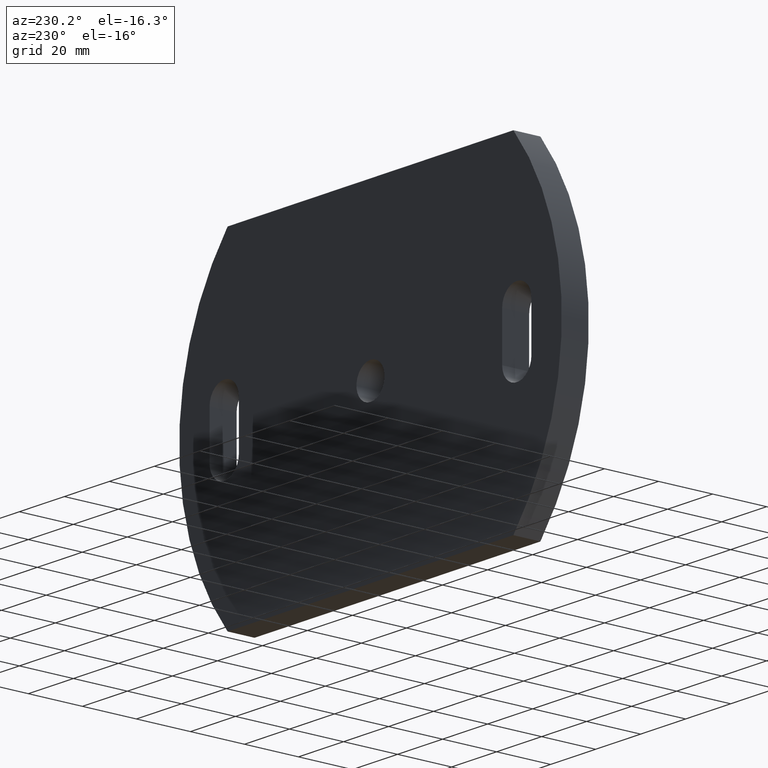
[diagram: clean part render]
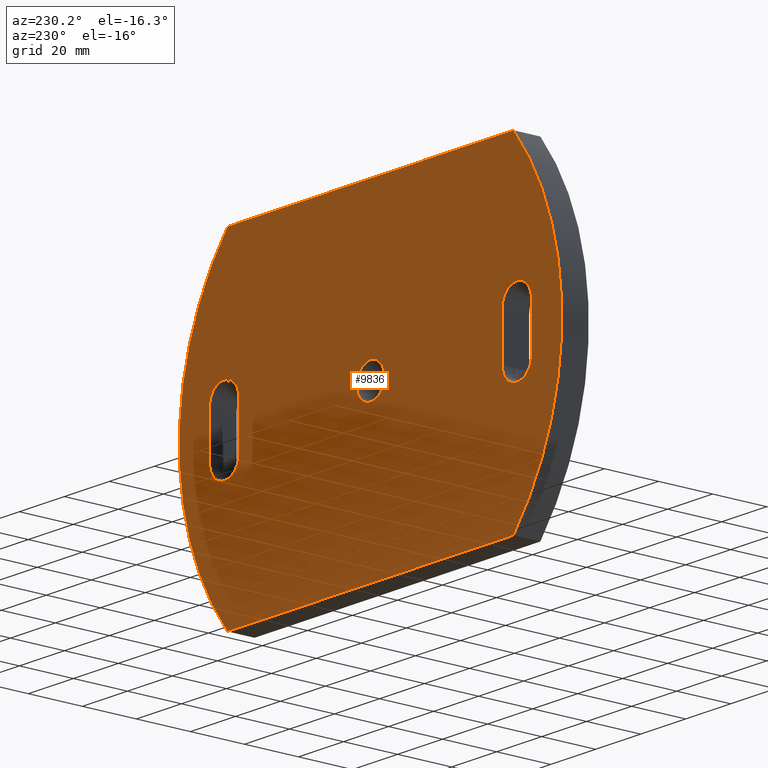
[diagram: same view with one face highlighted and labeled with its STEP entity id]
A machine part, auxiliary view. The second image highlights one B-rep face of the part: STEP entity #9836.
In plain terms, the highlighted planar face has unit normal (0, -1, 0).
Its self-contained STEP definition (entity closure, byte-faithful):
#23 = ORIENTED_EDGE ( 'NONE', *, *, #3301, .F. ) ;
#209 = CARTESIAN_POINT ( 'NONE',  ( -65.00000000000000000, 10.00000000000000000, -8.500000000000010700 ) ) ;
#443 = AXIS2_PLACEMENT_3D ( 'NONE', #10272, #9493, #6099 ) ;
#488 = VERTEX_POINT ( 'NONE', #5750 ) ;
#520 = DIRECTION ( 'NONE',  ( 0.0000000000000000000, 1.000000000000000000, 0.0000000000000000000 ) ) ;
#551 = VECTOR ( 'NONE', #7333, 1000.000000000000000 ) ;
#569 = VERTEX_POINT ( 'NONE', #4309 ) ;
#602 = VERTEX_POINT ( 'NONE', #8509 ) ;
#675 = CARTESIAN_POINT ( 'NONE',  ( -71.50000000000000000, 10.00000000000000000, 8.499999999999982200 ) ) ;
#719 = ORIENTED_EDGE ( 'NONE', *, *, #7310, .F. ) ;
#732 = AXIS2_PLACEMENT_3D ( 'NONE', #2830, #6996, #3647 ) ;
#890 = FACE_BOUND ( 'NONE', #6269, .T. ) ;
#921 = CIRCLE ( 'NONE', #732, 6.500000000000005300 ) ;
#929 = EDGE_LOOP ( 'NONE', ( #9715, #8603 ) ) ;
#991 = PLANE ( 'NONE',  #4669 ) ;
#1014 = DIRECTION ( 'NONE',  ( 0.0000000000000000000, 0.0000000000000000000, 1.000000000000000000 ) ) ;
#1066 = EDGE_CURVE ( 'NONE', #2252, #2362, #4580, .T. ) ;
#1146 = LINE ( 'NONE', #7281, #8563 ) ;
#1161 = CIRCLE ( 'NONE', #8375, 6.500000000000005300 ) ;
#1301 = CARTESIAN_POINT ( 'NONE',  ( 0.0000000000000000000, 10.00000000000000000, 0.0000000000000000000 ) ) ;
#1333 = CARTESIAN_POINT ( 'NONE',  ( 58.49999999999998600, 10.00000000000000000, -8.500000000000008900 ) ) ;
#1354 = CARTESIAN_POINT ( 'NONE',  ( 0.0000000000000000000, 10.00000000000000000, 0.0000000000000000000 ) ) ;
#1399 = VERTEX_POINT ( 'NONE', #1914 ) ;
#1411 = VERTEX_POINT ( 'NONE', #3824 ) ;
#1569 = CARTESIAN_POINT ( 'NONE',  ( -71.50000000000000000, 10.00000000000000000, -8.499999999999985800 ) ) ;
#1619 = EDGE_CURVE ( 'NONE', #2362, #9214, #4570, .T. ) ;
#1764 = VERTEX_POINT ( 'NONE', #7202 ) ;
#1838 = VERTEX_POINT ( 'NONE', #3741 ) ;
#1843 = CARTESIAN_POINT ( 'NONE',  ( -9.470930232558071500, 10.00000000000000000, 0.0000000000000000000 ) ) ;
#1914 = CARTESIAN_POINT ( 'NONE',  ( -65.00000000000000000, 10.00000000000000000, 14.99999999999998000 ) ) ;
#1929 = EDGE_CURVE ( 'NONE', #6948, #4202, #1161, .T. ) ;
#1996 = VERTEX_POINT ( 'NONE', #9534 ) ;
#1999 = DIRECTION ( 'NONE',  ( 0.0000000000000000000, 0.0000000000000000000, 1.000000000000000000 ) ) ;
#2232 = EDGE_CURVE ( 'NONE', #1399, #1838, #6102, .T. ) ;
#2252 = VERTEX_POINT ( 'NONE', #9168 ) ;
#2345 = AXIS2_PLACEMENT_3D ( 'NONE', #6882, #5190, #6133 ) ;
#2362 = VERTEX_POINT ( 'NONE', #8503 ) ;
#2408 = AXIS2_PLACEMENT_3D ( 'NONE', #1301, #4592, #7801 ) ;
#2488 = DIRECTION ( 'NONE',  ( -1.000000000000000000, -0.0000000000000000000, -3.278217592397115900E-016 ) ) ;
#2547 = DIRECTION ( 'NONE',  ( 0.0000000000000000000, 0.0000000000000000000, 1.000000000000000000 ) ) ;
#2554 = AXIS2_PLACEMENT_3D ( 'NONE', #8424, #4376, #3577 ) ;
#2629 = ORIENTED_EDGE ( 'NONE', *, *, #3654, .F. ) ;
#2670 = DIRECTION ( 'NONE',  ( 0.0000000000000000000, -1.000000000000000000, 0.0000000000000000000 ) ) ;
#2685 = LINE ( 'NONE', #1333, #4663 ) ;
#2830 = CARTESIAN_POINT ( 'NONE',  ( 65.00000000000000000, 10.00000000000000000, 8.500000000000010700 ) ) ;
#3005 = CIRCLE ( 'NONE', #2554, 94.47093023255811800 ) ;
#3180 = EDGE_LOOP ( 'NONE', ( #2629, #8024, #23, #719, #6128 ) ) ;
#3279 = VECTOR ( 'NONE', #9814, 1000.000000000000000 ) ;
#3301 = EDGE_CURVE ( 'NONE', #602, #6948, #6851, .T. ) ;
#3577 = DIRECTION ( 'NONE',  ( 0.0000000000000000000, 0.0000000000000000000, 1.000000000000000000 ) ) ;
#3647 = DIRECTION ( 'NONE',  ( 0.0000000000000000000, 0.0000000000000000000, 1.000000000000000000 ) ) ;
#3654 = EDGE_CURVE ( 'NONE', #4202, #1996, #2685, .T. ) ;
#3741 = CARTESIAN_POINT ( 'NONE',  ( -58.50000000000000700, 10.00000000000000000, 8.499999999999984000 ) ) ;
#3793 = CARTESIAN_POINT ( 'NONE',  ( 65.00000000000000000, 10.00000000000000000, 8.500000000000010700 ) ) ;
#3824 = CARTESIAN_POINT ( 'NONE',  ( -63.49999999999995700, 10.00000000000000000, -60.00000000000004300 ) ) ;
#4099 = CARTESIAN_POINT ( 'NONE',  ( -65.00000000000000000, 10.00000000000000000, 8.499999999999989300 ) ) ;
#4139 = CARTESIAN_POINT ( 'NONE',  ( -63.50000000000001400, 10.00000000000000000, 59.99999999999997900 ) ) ;
#4181 = ORIENTED_EDGE ( 'NONE', *, *, #5363, .F. ) ;
#4202 = VERTEX_POINT ( 'NONE', #6445 ) ;
#4309 = CARTESIAN_POINT ( 'NONE',  ( 0.0000000000000000000, 10.00000000000000000, 6.250000000000000000 ) ) ;
#4376 = DIRECTION ( 'NONE',  ( 0.0000000000000000000, 1.000000000000000000, 0.0000000000000000000 ) ) ;
#4570 = CIRCLE ( 'NONE', #443, 94.47093023255808900 ) ;
#4580 = LINE ( 'NONE', #4139, #3279 ) ;
#4592 = DIRECTION ( 'NONE',  ( 0.0000000000000000000, 1.000000000000000000, 0.0000000000000000000 ) ) ;
#4663 = VECTOR ( 'NONE', #8008, 1000.000000000000000 ) ;
#4669 = AXIS2_PLACEMENT_3D ( 'NONE', #1843, #2670, #8493 ) ;
#4926 = AXIS2_PLACEMENT_3D ( 'NONE', #3793, #6957, #1999 ) ;
#4976 = CARTESIAN_POINT ( 'NONE',  ( -58.50000000000000700, 10.00000000000000000, -8.499999999999984000 ) ) ;
#5061 = FACE_OUTER_BOUND ( 'NONE', #8954, .T. ) ;
#5073 = VERTEX_POINT ( 'NONE', #675 ) ;
#5139 = DIRECTION ( 'NONE',  ( 0.0000000000000000000, 1.000000000000000000, 0.0000000000000000000 ) ) ;
#5156 = VERTEX_POINT ( 'NONE', #7423 ) ;
#5190 = DIRECTION ( 'NONE',  ( 0.0000000000000000000, 1.000000000000000000, 0.0000000000000000000 ) ) ;
#5321 = FACE_BOUND ( 'NONE', #3180, .T. ) ;
#5363 = EDGE_CURVE ( 'NONE', #9635, #5156, #9212, .T. ) ;
#5590 = CARTESIAN_POINT ( 'NONE',  ( -58.50000000000000700, 10.00000000000000000, -8.499999999999984000 ) ) ;
#5750 = CARTESIAN_POINT ( 'NONE',  ( 65.00000000000000000, 10.00000000000000000, 15.00000000000001600 ) ) ;
#5841 = CIRCLE ( 'NONE', #4926, 6.500000000000005300 ) ;
#6099 = DIRECTION ( 'NONE',  ( 0.0000000000000000000, 0.0000000000000000000, -1.000000000000000000 ) ) ;
#6102 = CIRCLE ( 'NONE', #9833, 6.499999999999992000 ) ;
#6128 = ORIENTED_EDGE ( 'NONE', *, *, #9516, .F. ) ;
#6130 = LINE ( 'NONE', #4976, #551 ) ;
#6133 = DIRECTION ( 'NONE',  ( 0.0000000000000000000, 0.0000000000000000000, 1.000000000000000000 ) ) ;
#6269 = EDGE_LOOP ( 'NONE', ( #7709, #4181, #6545, #10508, #8585 ) ) ;
#6445 = CARTESIAN_POINT ( 'NONE',  ( 58.49999999999998600, 10.00000000000000000, -8.500000000000008900 ) ) ;
#6520 = LINE ( 'NONE', #1569, #7923 ) ;
#6545 = ORIENTED_EDGE ( 'NONE', *, *, #7524, .F. ) ;
#6709 = CARTESIAN_POINT ( 'NONE',  ( 71.50000000000000000, 10.00000000000000000, -8.500000000000010700 ) ) ;
#6720 = ORIENTED_EDGE ( 'NONE', *, *, #10295, .T. ) ;
#6790 = ORIENTED_EDGE ( 'NONE', *, *, #8648, .T. ) ;
#6817 = DIRECTION ( 'NONE',  ( 0.0000000000000000000, 0.0000000000000000000, 1.000000000000000000 ) ) ;
#6851 = LINE ( 'NONE', #6709, #10630 ) ;
#6882 = CARTESIAN_POINT ( 'NONE',  ( -65.00000000000000000, 10.00000000000000000, 8.499999999999989300 ) ) ;
#6940 = CARTESIAN_POINT ( 'NONE',  ( 71.50000000000000000, 10.00000000000000000, -8.500000000000010700 ) ) ;
#6948 = VERTEX_POINT ( 'NONE', #6940 ) ;
#6957 = DIRECTION ( 'NONE',  ( 0.0000000000000000000, 1.000000000000000000, 0.0000000000000000000 ) ) ;
#6964 = EDGE_CURVE ( 'NONE', #569, #1764, #10029, .T. ) ;
#6996 = DIRECTION ( 'NONE',  ( 0.0000000000000000000, 1.000000000000000000, 0.0000000000000000000 ) ) ;
#7151 = DIRECTION ( 'NONE',  ( 0.0000000000000000000, 0.0000000000000000000, 1.000000000000000000 ) ) ;
#7202 = CARTESIAN_POINT ( 'NONE',  ( 7.654042494670957600E-016, 10.00000000000000000, -6.250000000000000000 ) ) ;
#7225 = CARTESIAN_POINT ( 'NONE',  ( 65.00000000000000000, 10.00000000000000000, -8.499999999999987600 ) ) ;
#7265 = FACE_BOUND ( 'NONE', #929, .T. ) ;
#7281 = CARTESIAN_POINT ( 'NONE',  ( -63.49999999999998600, 10.00000000000000000, -60.00000000000001400 ) ) ;
#7287 = EDGE_CURVE ( 'NONE', #1764, #569, #8858, .T. ) ;
#7310 = EDGE_CURVE ( 'NONE', #488, #602, #921, .T. ) ;
#7333 = DIRECTION ( 'NONE',  ( -0.0000000000000000000, -0.0000000000000000000, -1.000000000000000000 ) ) ;
#7423 = CARTESIAN_POINT ( 'NONE',  ( -71.50000000000000000, 10.00000000000000000, -8.499999999999985800 ) ) ;
#7524 = EDGE_CURVE ( 'NONE', #1838, #9635, #6130, .T. ) ;
#7533 = ORIENTED_EDGE ( 'NONE', *, *, #1619, .T. ) ;
#7709 = ORIENTED_EDGE ( 'NONE', *, *, #8566, .F. ) ;
#7801 = DIRECTION ( 'NONE',  ( 0.0000000000000000000, 0.0000000000000000000, 1.000000000000000000 ) ) ;
#7923 = VECTOR ( 'NONE', #2547, 1000.000000000000000 ) ;
#8008 = DIRECTION ( 'NONE',  ( 0.0000000000000000000, 0.0000000000000000000, 1.000000000000000000 ) ) ;
#8024 = ORIENTED_EDGE ( 'NONE', *, *, #1929, .F. ) ;
#8110 = DIRECTION ( 'NONE',  ( 0.0000000000000000000, 1.000000000000000000, 0.0000000000000000000 ) ) ;
#8157 = EDGE_CURVE ( 'NONE', #5073, #1399, #9352, .T. ) ;
#8350 = DIRECTION ( 'NONE',  ( 0.0000000000000000000, 1.000000000000000000, 0.0000000000000000000 ) ) ;
#8375 = AXIS2_PLACEMENT_3D ( 'NONE', #7225, #8110, #7151 ) ;
#8424 = CARTESIAN_POINT ( 'NONE',  ( 9.470930232558114200, 10.00000000000000000, 3.469446951953614200E-015 ) ) ;
#8493 = DIRECTION ( 'NONE',  ( 0.0000000000000000000, -0.0000000000000000000, -1.000000000000000000 ) ) ;
#8503 = CARTESIAN_POINT ( 'NONE',  ( 63.49999999999998600, 10.00000000000000000, 60.00000000000002800 ) ) ;
#8509 = CARTESIAN_POINT ( 'NONE',  ( 71.50000000000000000, 10.00000000000000000, 8.500000000000010700 ) ) ;
#8563 = VECTOR ( 'NONE', #2488, 1000.000000000000000 ) ;
#8566 = EDGE_CURVE ( 'NONE', #5156, #5073, #6520, .T. ) ;
#8585 = ORIENTED_EDGE ( 'NONE', *, *, #8157, .F. ) ;
#8603 = ORIENTED_EDGE ( 'NONE', *, *, #7287, .F. ) ;
#8605 = ORIENTED_EDGE ( 'NONE', *, *, #1066, .T. ) ;
#8648 = EDGE_CURVE ( 'NONE', #1411, #2252, #3005, .T. ) ;
#8858 = CIRCLE ( 'NONE', #2408, 6.250000000000000000 ) ;
#8954 = EDGE_LOOP ( 'NONE', ( #7533, #6720, #6790, #8605 ) ) ;
#8993 = CARTESIAN_POINT ( 'NONE',  ( 63.50000000000001400, 10.00000000000000000, -59.99999999999997200 ) ) ;
#9168 = CARTESIAN_POINT ( 'NONE',  ( -63.50000000000001400, 10.00000000000000000, 59.99999999999997900 ) ) ;
#9212 = CIRCLE ( 'NONE', #10107, 6.499999999999992000 ) ;
#9214 = VERTEX_POINT ( 'NONE', #8993 ) ;
#9352 = CIRCLE ( 'NONE', #2345, 6.499999999999992000 ) ;
#9493 = DIRECTION ( 'NONE',  ( 0.0000000000000000000, 1.000000000000000000, -0.0000000000000000000 ) ) ;
#9516 = EDGE_CURVE ( 'NONE', #1996, #488, #5841, .T. ) ;
#9534 = CARTESIAN_POINT ( 'NONE',  ( 58.50000000000000000, 10.00000000000000000, 8.500000000000008900 ) ) ;
#9635 = VERTEX_POINT ( 'NONE', #5590 ) ;
#9715 = ORIENTED_EDGE ( 'NONE', *, *, #6964, .F. ) ;
#9814 = DIRECTION ( 'NONE',  ( 1.000000000000000000, 0.0000000000000000000, 3.824587191129968500E-016 ) ) ;
#9833 = AXIS2_PLACEMENT_3D ( 'NONE', #4099, #8350, #6817 ) ;
#9836 = ADVANCED_FACE ( 'NONE', ( #5321, #890, #7265, #5061 ), #991, .F. ) ;
#10029 = CIRCLE ( 'NONE', #10258, 6.250000000000000000 ) ;
#10039 = DIRECTION ( 'NONE',  ( -0.0000000000000000000, -0.0000000000000000000, -1.000000000000000000 ) ) ;
#10107 = AXIS2_PLACEMENT_3D ( 'NONE', #209, #5139, #1014 ) ;
#10258 = AXIS2_PLACEMENT_3D ( 'NONE', #1354, #520, #10429 ) ;
#10272 = CARTESIAN_POINT ( 'NONE',  ( -9.470930232558071500, 10.00000000000000000, 0.0000000000000000000 ) ) ;
#10295 = EDGE_CURVE ( 'NONE', #9214, #1411, #1146, .T. ) ;
#10429 = DIRECTION ( 'NONE',  ( 0.0000000000000000000, 0.0000000000000000000, 1.000000000000000000 ) ) ;
#10508 = ORIENTED_EDGE ( 'NONE', *, *, #2232, .F. ) ;
#10630 = VECTOR ( 'NONE', #10039, 1000.000000000000000 ) ;